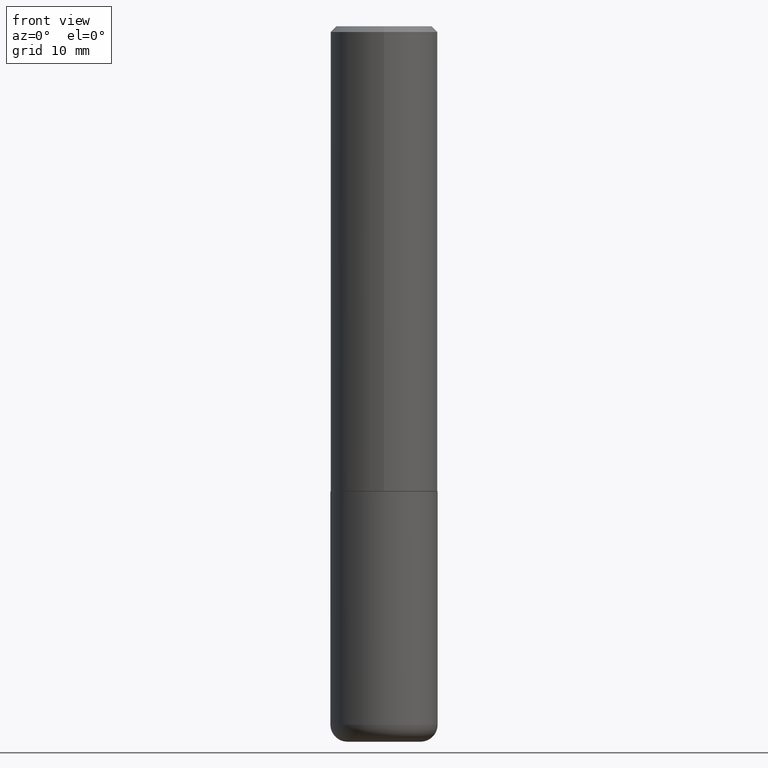
[diagram: clean part render]
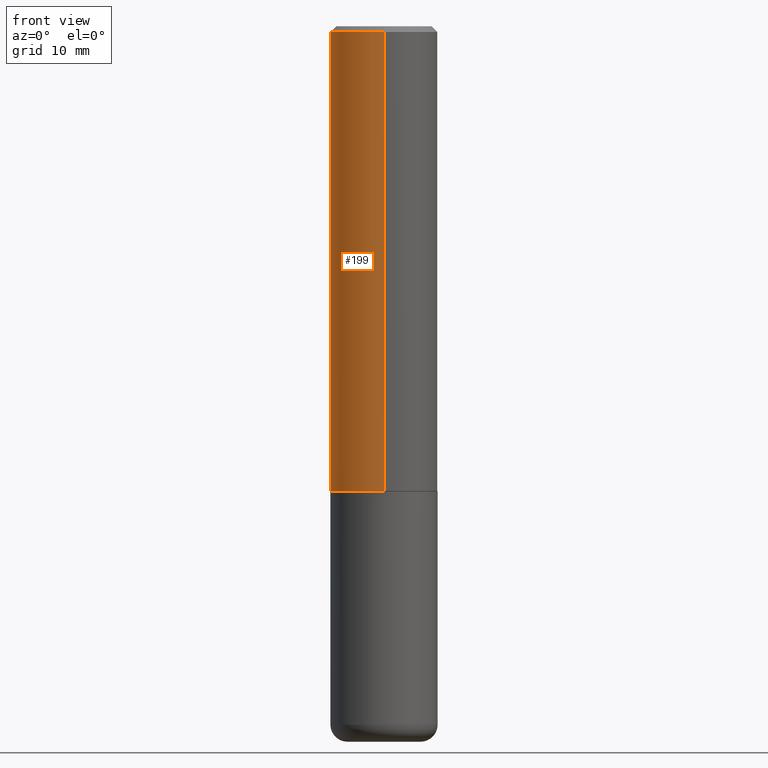
[diagram: same view with one face highlighted and labeled with its STEP entity id]
A machine part, front view. The second image highlights one B-rep face of the part: STEP entity #199.
In plain terms, the highlighted cylindrical surface (partial cylindrical patch) has radius 4.7625 mm, axis along (-0, 0, 1).
Its self-contained STEP definition (entity closure, byte-faithful):
#1 = DIRECTION ( 'NONE',  ( -2.445663447522104049E-29, 3.491202601370310888E-15, 1.000000000000000000 ) ) ;
#23 = ORIENTED_EDGE ( 'NONE', *, *, #239, .T. ) ;
#30 = CARTESIAN_POINT ( 'NONE',  ( -1.286343374582161379E-15, -0.1875000000000000555, -0.01999999999999938979 ) ) ;
#32 = CARTESIAN_POINT ( 'NONE',  ( -1.309305502066136748E-15, -0.1875000000000058842, -1.623999999999999666 ) ) ;
#33 = DIRECTION ( 'NONE',  ( -2.445663447522104049E-29, 3.491202601370311283E-15, 1.000000000000000000 ) ) ;
#39 = EDGE_CURVE ( 'NONE', #411, #182, #236, .T. ) ;
#49 = VERTEX_POINT ( 'NONE', #32 ) ;
#74 = CARTESIAN_POINT ( 'NONE',  ( 4.891326895044218398E-31, -6.982405202740636519E-17, -0.02000000000000004205 ) ) ;
#76 = AXIS2_PLACEMENT_3D ( 'NONE', #350, #33, #190 ) ;
#87 = EDGE_CURVE ( 'NONE', #90, #411, #126, .T. ) ;
#90 = VERTEX_POINT ( 'NONE', #129 ) ;
#126 = LINE ( 'NONE', #249, #265 ) ;
#129 = CARTESIAN_POINT ( 'NONE',  ( 1.332267629550208753E-15, 0.1874999999999945599, -1.624000000000000776 ) ) ;
#132 = DIRECTION ( 'NONE',  ( -6.982962677686266711E-15, -1.000000000000000000, 3.483106191921935949E-15 ) ) ;
#144 = DIRECTION ( 'NONE',  ( -2.445663447522104049E-29, 3.491202601370310888E-15, 1.000000000000000000 ) ) ;
#147 = ORIENTED_EDGE ( 'NONE', *, *, #39, .F. ) ;
#155 = CYLINDRICAL_SURFACE ( 'NONE', #234, 0.1875000000000001110 ) ;
#182 = VERTEX_POINT ( 'NONE', #30 ) ;
#190 = DIRECTION ( 'NONE',  ( -6.982962677686265922E-15, -1.000000000000000000, 2.913971193241877216E-15 ) ) ;
#195 = CARTESIAN_POINT ( 'NONE',  ( 0.000000000000000000, 0.000000000000000000, 0.000000000000000000 ) ) ;
#199 = ADVANCED_FACE ( 'NONE', ( #388 ), #155, .T. ) ;
#212 = ORIENTED_EDGE ( 'NONE', *, *, #87, .F. ) ;
#218 = DIRECTION ( 'NONE',  ( -2.445663447522104049E-29, 3.491202601370311283E-15, 1.000000000000000000 ) ) ;
#231 = EDGE_LOOP ( 'NONE', ( #212, #23, #305, #147 ) ) ;
#234 = AXIS2_PLACEMENT_3D ( 'NONE', #195, #281, #356 ) ;
#236 = CIRCLE ( 'NONE', #352, 0.1874999999999999722 ) ;
#239 = EDGE_CURVE ( 'NONE', #90, #49, #414, .T. ) ;
#243 = LINE ( 'NONE', #253, #266 ) ;
#249 = CARTESIAN_POINT ( 'NONE',  ( 1.332267629550188440E-15, 0.1875000000000001110, -6.546004877569338093E-16 ) ) ;
#253 = CARTESIAN_POINT ( 'NONE',  ( -1.309305502066175797E-15, -0.1875000000000001110, 6.546004877569338093E-16 ) ) ;
#265 = VECTOR ( 'NONE', #1, 39.37007874015748143 ) ;
#266 = VECTOR ( 'NONE', #144, 39.37007874015748143 ) ;
#277 = CARTESIAN_POINT ( 'NONE',  ( 1.309305502066175205E-15, 0.1874999999999999167, -0.02000000000000069431 ) ) ;
#281 = DIRECTION ( 'NONE',  ( -2.445663447522104049E-29, 3.491202601370311283E-15, 1.000000000000000000 ) ) ;
#305 = ORIENTED_EDGE ( 'NONE', *, *, #384, .T. ) ;
#350 = CARTESIAN_POINT ( 'NONE',  ( 3.971757438775897765E-29, -5.669713024625386356E-15, -1.624000000000000110 ) ) ;
#352 = AXIS2_PLACEMENT_3D ( 'NONE', #74, #218, #132 ) ;
#356 = DIRECTION ( 'NONE',  ( -6.982962677686266711E-15, -1.000000000000000000, 3.491202601370311677E-15 ) ) ;
#384 = EDGE_CURVE ( 'NONE', #49, #182, #243, .T. ) ;
#388 = FACE_OUTER_BOUND ( 'NONE', #231, .T. ) ;
#411 = VERTEX_POINT ( 'NONE', #277 ) ;
#414 = CIRCLE ( 'NONE', #76, 0.1875000000000002220 ) ;